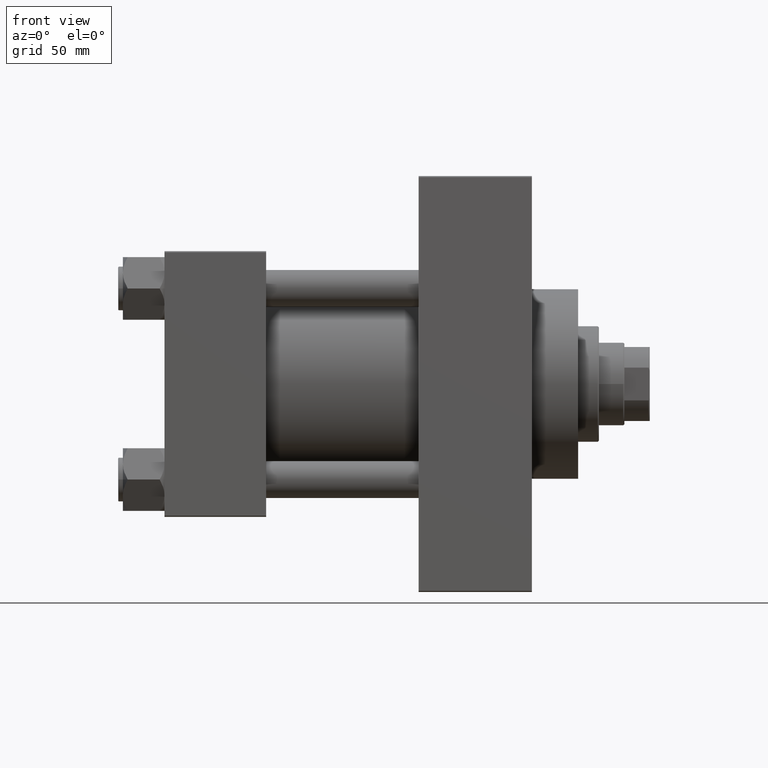
[diagram: clean part render]
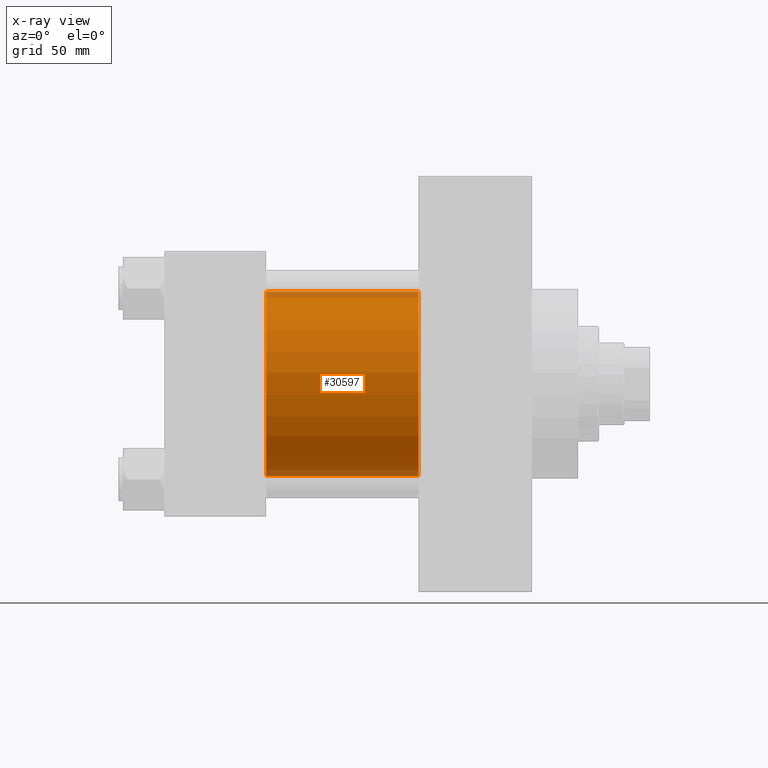
[diagram: x-ray — body ghosted, one internal face saturated and labeled with its STEP entity id]
A machine part, front view, then the same camera in x-ray: the body is ghosted and one INTERNAL B-rep face — a face not visible from any outside direction — is saturated and labeled: STEP entity #30597.
In plain terms, the highlighted cylindrical surface (partial cylindrical patch) has radius 40 mm, axis along (-1, -0, -0).
Its self-contained STEP definition (entity closure, byte-faithful):
#270 = CARTESIAN_POINT ( 'NONE',  ( 110.0000000000000000, -2.602085213965210642E-15, 40.00000000000000000 ) ) ;
#1850 = EDGE_LOOP ( 'NONE', ( #6654, #24544, #32594, #4600 ) ) ;
#2791 = VERTEX_POINT ( 'NONE', #9751 ) ;
#3847 = VERTEX_POINT ( 'NONE', #21966 ) ;
#4600 = ORIENTED_EDGE ( 'NONE', *, *, #16663, .F. ) ;
#4864 = LINE ( 'NONE', #24197, #12309 ) ;
#6022 = CIRCLE ( 'NONE', #42494, 40.00000000000000000 ) ;
#6654 = ORIENTED_EDGE ( 'NONE', *, *, #28119, .T. ) ;
#8165 = CARTESIAN_POINT ( 'NONE',  ( 110.0000000000000000, 2.296501982624201990E-15, -40.00000000000000000 ) ) ;
#8234 = DIRECTION ( 'NONE',  ( 0.000000000000000000, 0.000000000000000000, -1.000000000000000000 ) ) ;
#9270 = AXIS2_PLACEMENT_3D ( 'NONE', #44837, #17222, #32385 ) ;
#9751 = CARTESIAN_POINT ( 'NONE',  ( 110.0000000000000000, 2.296501982624201990E-15, -40.00000000000000000 ) ) ;
#12118 = LINE ( 'NONE', #8165, #40913 ) ;
#12309 = VECTOR ( 'NONE', #16490, 1000.000000000000000 ) ;
#13996 = FACE_OUTER_BOUND ( 'NONE', #1850, .T. ) ;
#16490 = DIRECTION ( 'NONE',  ( -1.000000000000000000, -0.000000000000000000, -0.000000000000000000 ) ) ;
#16663 = EDGE_CURVE ( 'NONE', #22656, #25664, #4864, .T. ) ;
#17222 = DIRECTION ( 'NONE',  ( -1.000000000000000000, -0.000000000000000000, -0.000000000000000000 ) ) ;
#19014 = EDGE_CURVE ( 'NONE', #25664, #3847, #24827, .T. ) ;
#21966 = CARTESIAN_POINT ( 'NONE',  ( 44.00000000000000000, 2.296501982624201990E-15, -40.00000000000000000 ) ) ;
#22656 = VERTEX_POINT ( 'NONE', #270 ) ;
#24085 = DIRECTION ( 'NONE',  ( 1.000000000000000000, 0.000000000000000000, 0.000000000000000000 ) ) ;
#24197 = CARTESIAN_POINT ( 'NONE',  ( 110.0000000000000000, -2.602085213965210642E-15, 40.00000000000000000 ) ) ;
#24544 = ORIENTED_EDGE ( 'NONE', *, *, #28308, .T. ) ;
#24804 = CARTESIAN_POINT ( 'NONE',  ( 110.0000000000000000, -2.602085213965210642E-15, 0.000000000000000000 ) ) ;
#24827 = CIRCLE ( 'NONE', #33574, 40.00000000000000000 ) ;
#25664 = VERTEX_POINT ( 'NONE', #39524 ) ;
#28119 = EDGE_CURVE ( 'NONE', #22656, #2791, #6022, .T. ) ;
#28308 = EDGE_CURVE ( 'NONE', #2791, #3847, #12118, .T. ) ;
#30597 = ADVANCED_FACE ( 'NONE', ( #13996 ), #36120, .F. ) ;
#31296 = CARTESIAN_POINT ( 'NONE',  ( 44.00000000000000000, -2.602085213965210642E-15, 0.000000000000000000 ) ) ;
#32385 = DIRECTION ( 'NONE',  ( 0.000000000000000000, 0.000000000000000000, 1.000000000000000000 ) ) ;
#32594 = ORIENTED_EDGE ( 'NONE', *, *, #19014, .F. ) ;
#33574 = AXIS2_PLACEMENT_3D ( 'NONE', #31296, #24085, #8234 ) ;
#36120 = CYLINDRICAL_SURFACE ( 'NONE', #9270, 40.00000000000000000 ) ;
#38212 = DIRECTION ( 'NONE',  ( -1.000000000000000000, -0.000000000000000000, -0.000000000000000000 ) ) ;
#39241 = DIRECTION ( 'NONE',  ( 0.000000000000000000, 0.000000000000000000, -1.000000000000000000 ) ) ;
#39524 = CARTESIAN_POINT ( 'NONE',  ( 44.00000000000000000, -2.602085213965210642E-15, 40.00000000000000000 ) ) ;
#40913 = VECTOR ( 'NONE', #38212, 1000.000000000000000 ) ;
#42494 = AXIS2_PLACEMENT_3D ( 'NONE', #24804, #43453, #39241 ) ;
#43453 = DIRECTION ( 'NONE',  ( 1.000000000000000000, 0.000000000000000000, 0.000000000000000000 ) ) ;
#44837 = CARTESIAN_POINT ( 'NONE',  ( 110.0000000000000000, -2.602085213965210642E-15, 0.000000000000000000 ) ) ;